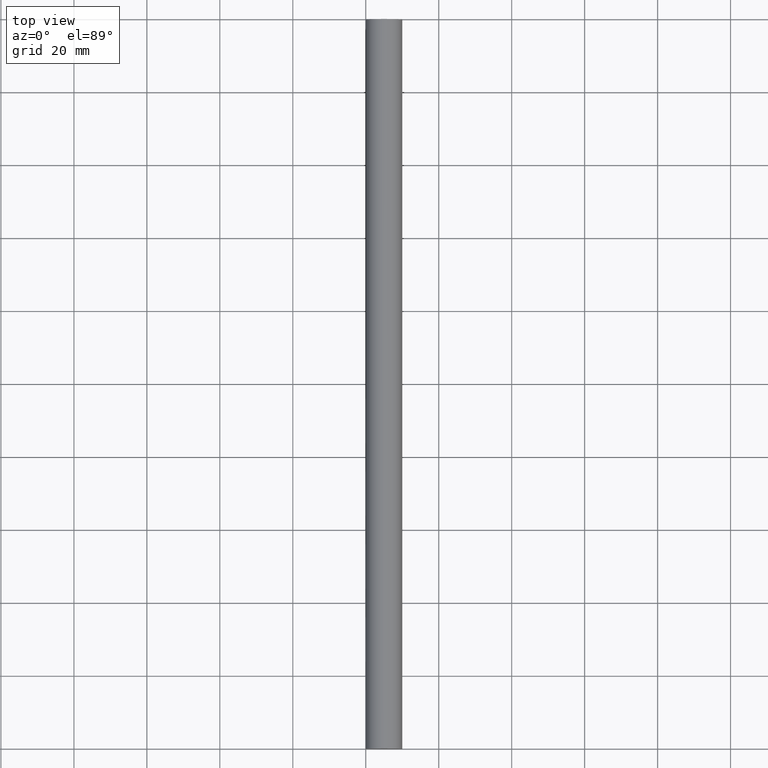
[diagram: clean part render]
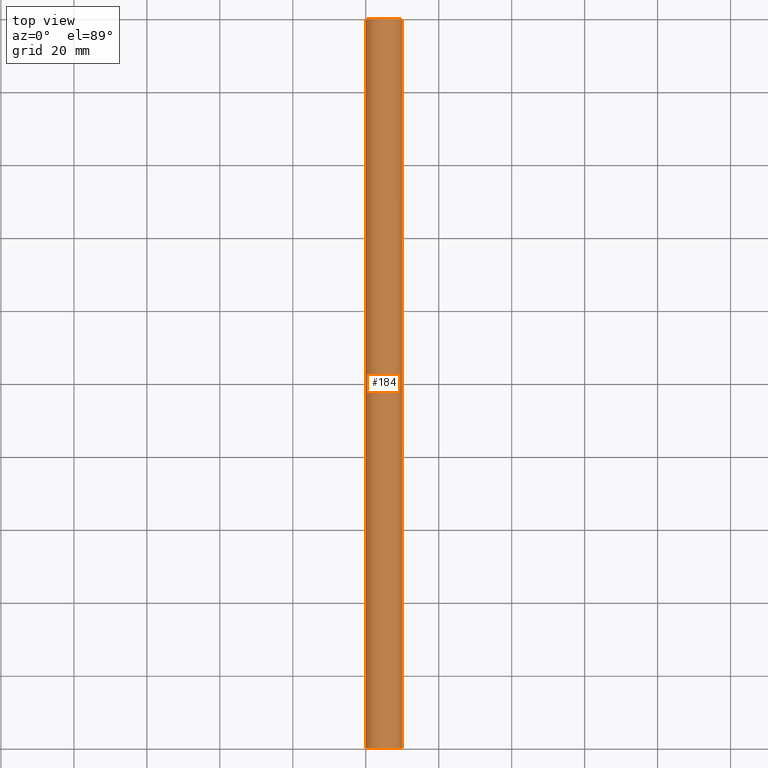
[diagram: same view with one face highlighted and labeled with its STEP entity id]
A machine part, top view. The second image highlights one B-rep face of the part: STEP entity #184.
In plain terms, the highlighted face is a freeform B-spline surface patch.
Its self-contained STEP definition (entity closure, byte-faithful):
#58=CARTESIAN_POINT('',(10.0,0.0,5.0));
#59=VERTEX_POINT('',#58);
#65=CARTESIAN_POINT('',(0.0,0.0,5.0));
#66=VERTEX_POINT('',#65);
#67=CARTESIAN_POINT('',(10.0,0.0,5.0));
#68=CARTESIAN_POINT('',(10.000000000000002,0.0,10.000000000000002));
#69=CARTESIAN_POINT('',(5.0,0.0,10.0));
#70=CARTESIAN_POINT('',(0.0,0.0,10.000000000000002));
#71=CARTESIAN_POINT('',(0.0,0.0,5.0));
#79=(BOUNDED_CURVE()B_SPLINE_CURVE(2,(#67,#68,#69,#70,#71),.UNSPECIFIED.,.F.,.U.)B_SPLINE_CURVE_WITH_KNOTS((3,2,3),(0.0,0.500000000000000,1.0),.UNSPECIFIED.)CURVE()GEOMETRIC_REPRESENTATION_ITEM()RATIONAL_B_SPLINE_CURVE((1.0,0.707106781186548,1.0,0.707106781186548,1.0))REPRESENTATION_ITEM(''));
#80=EDGE_CURVE('',#59,#66,#79,.T.);
#104=CARTESIAN_POINT('',(0.0,200.0,5.0));
#105=VERTEX_POINT('',#104);
#111=CARTESIAN_POINT('',(10.0,200.0,5.0));
#112=VERTEX_POINT('',#111);
#113=CARTESIAN_POINT('',(10.0,200.0,5.0));
#114=CARTESIAN_POINT('',(10.000000000000002,200.0,10.000000000000002));
#115=CARTESIAN_POINT('',(5.0,200.0,10.0));
#116=CARTESIAN_POINT('',(0.0,200.0,10.000000000000002));
#117=CARTESIAN_POINT('',(0.0,200.0,5.0));
#125=(BOUNDED_CURVE()B_SPLINE_CURVE(2,(#113,#114,#115,#116,#117),.UNSPECIFIED.,.F.,.U.)B_SPLINE_CURVE_WITH_KNOTS((3,2,3),(0.0,0.500000000000000,1.0),.UNSPECIFIED.)CURVE()GEOMETRIC_REPRESENTATION_ITEM()RATIONAL_B_SPLINE_CURVE((1.0,0.707106781186548,1.0,0.707106781186548,1.0))REPRESENTATION_ITEM(''));
#126=EDGE_CURVE('',#112,#105,#125,.T.);
#142=CARTESIAN_POINT('',(0.0,200.0,5.0));
#143=CARTESIAN_POINT('',(0.0,0.0,5.0));
#144=QUASI_UNIFORM_CURVE('',1,(#142,#143),.UNSPECIFIED.,.F.,.U.);
#145=EDGE_CURVE('',#105,#66,#144,.T.);
#156=CARTESIAN_POINT('',(0.001713375122216,205.0,4.869115258460627));
#157=CARTESIAN_POINT('',(0.001713375122216,-5.125000000000000,4.869115258460627));
#158=CARTESIAN_POINT('',(-0.136210364214512,205.000000000000030,10.136210364214495));
#159=CARTESIAN_POINT('',(-0.136210364214512,-5.124999999999999,10.136210364214495));
#160=CARTESIAN_POINT('',(5.130884741539358,205.0,9.998286624877785));
#161=CARTESIAN_POINT('',(5.130884741539358,-5.125000000000000,9.998286624877785));
#162=CARTESIAN_POINT('',(10.397979847293229,205.000000000000030,9.860362885541074));
#163=CARTESIAN_POINT('',(10.397979847293229,-5.124999999999999,9.860362885541074));
#164=CARTESIAN_POINT('',(9.984586668665639,205.0,4.607704521360784));
#165=CARTESIAN_POINT('',(9.984586668665639,-5.125000000000000,4.607704521360784));
#173=(BOUNDED_SURFACE()B_SPLINE_SURFACE(1,2,((#156,#158,#160,#162,#164),(#157,#159,#161,#163,#165)),.UNSPECIFIED.,.F.,.F.,.U.)B_SPLINE_SURFACE_WITH_KNOTS((2,2),(3,2,3),(0.0,210.125000000000110),(0.0,8.592678119336719,17.185356238673439),.UNSPECIFIED.)GEOMETRIC_REPRESENTATION_ITEM()RATIONAL_B_SPLINE_SURFACE(((1.0,0.688354575693754,1.0,0.688354575693754,1.0),(1.0,0.688354575693754,1.0,0.688354575693754,1.0)))REPRESENTATION_ITEM('')SURFACE());
#174=ORIENTED_EDGE('',*,*,#80,.F.);
#175=CARTESIAN_POINT('',(10.0,200.0,5.0));
#176=CARTESIAN_POINT('',(10.0,0.0,5.0));
#177=QUASI_UNIFORM_CURVE('',1,(#175,#176),.UNSPECIFIED.,.F.,.U.);
#178=EDGE_CURVE('',#112,#59,#177,.T.);
#179=ORIENTED_EDGE('',*,*,#178,.F.);
#180=ORIENTED_EDGE('',*,*,#126,.T.);
#181=ORIENTED_EDGE('',*,*,#145,.T.);
#182=EDGE_LOOP('',(#174,#179,#180,#181));
#183=FACE_OUTER_BOUND('',#182,.T.);
#184=ADVANCED_FACE('',(#183),#173,.T.);